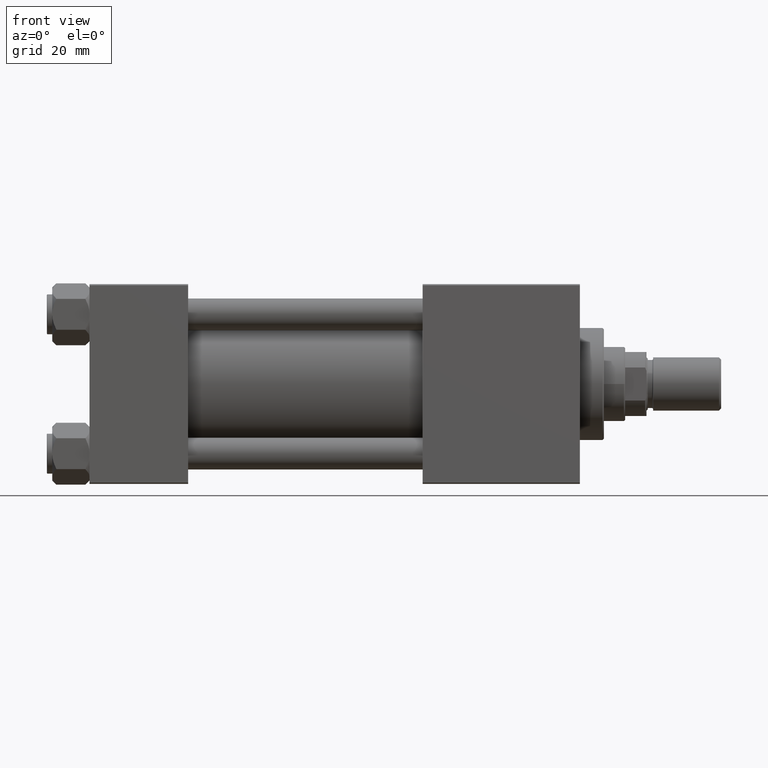
[diagram: clean part render]
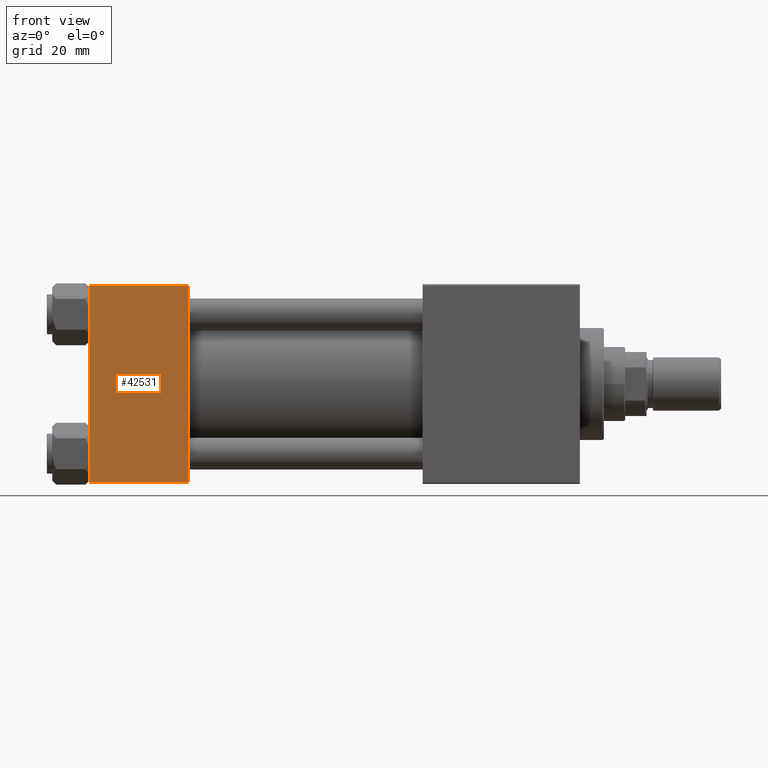
[diagram: same view with one face highlighted and labeled with its STEP entity id]
A machine part, front view. The second image highlights one B-rep face of the part: STEP entity #42531.
In plain terms, the highlighted planar face has unit normal (0, 1, 0).
Its self-contained STEP definition (entity closure, byte-faithful):
#818 = ORIENTED_EDGE ( 'NONE', *, *, #41349, .T. ) ;
#1013 = ORIENTED_EDGE ( 'NONE', *, *, #11912, .T. ) ;
#2554 = VECTOR ( 'NONE', #11000, 1000.000000000000000 ) ;
#3469 = CARTESIAN_POINT ( 'NONE',  ( 37.00000000000000000, -37.50000000000000711, 36.99999999999999289 ) ) ;
#6259 = LINE ( 'NONE', #41861, #10826 ) ;
#6762 = AXIS2_PLACEMENT_3D ( 'NONE', #44143, #12396, #28012 ) ;
#7945 = ORIENTED_EDGE ( 'NONE', *, *, #50204, .T. ) ;
#8973 = LINE ( 'NONE', #32537, #49920 ) ;
#9938 = CARTESIAN_POINT ( 'NONE',  ( 37.00000000000000000, -37.50000000000000711, 36.99999999999999289 ) ) ;
#10738 = CARTESIAN_POINT ( 'NONE',  ( 37.00000000000000000, -37.50000000000000711, 37.49999999999999289 ) ) ;
#10826 = VECTOR ( 'NONE', #17549, 1000.000000000000000 ) ;
#11000 = DIRECTION ( 'NONE',  ( 0.000000000000000000, 9.251858538542971581E-17, -1.000000000000000000 ) ) ;
#11181 = ORIENTED_EDGE ( 'NONE', *, *, #35068, .F. ) ;
#11404 = DIRECTION ( 'NONE',  ( -1.000000000000000000, 0.000000000000000000, 0.000000000000000000 ) ) ;
#11912 = EDGE_CURVE ( 'NONE', #46295, #49685, #8973, .T. ) ;
#12396 = DIRECTION ( 'NONE',  ( -0.000000000000000000, 1.000000000000000000, 9.251858538542971581E-17 ) ) ;
#17549 = DIRECTION ( 'NONE',  ( 1.000000000000000000, 0.000000000000000000, 0.000000000000000000 ) ) ;
#20844 = FACE_OUTER_BOUND ( 'NONE', #23213, .T. ) ;
#23213 = EDGE_LOOP ( 'NONE', ( #1013, #818, #11181, #7945 ) ) ;
#23697 = LINE ( 'NONE', #3469, #28315 ) ;
#28012 = DIRECTION ( 'NONE',  ( 0.000000000000000000, -9.251858538542971581E-17, 1.000000000000000000 ) ) ;
#28315 = VECTOR ( 'NONE', #11404, 1000.000000000000000 ) ;
#28780 = VERTEX_POINT ( 'NONE', #9938 ) ;
#32537 = CARTESIAN_POINT ( 'NONE',  ( 0.000000000000000000, -37.50000000000000711, 37.49999999999999289 ) ) ;
#35068 = EDGE_CURVE ( 'NONE', #28780, #39996, #46332, .T. ) ;
#37387 = CARTESIAN_POINT ( 'NONE',  ( 0.000000000000000000, -37.50000000000000711, 36.99999999999999289 ) ) ;
#39215 = DIRECTION ( 'NONE',  ( 0.000000000000000000, 9.251858538542971581E-17, -1.000000000000000000 ) ) ;
#39688 = CARTESIAN_POINT ( 'NONE',  ( 37.00000000000000000, -37.50000000000000000, -37.00000000000003553 ) ) ;
#39996 = VERTEX_POINT ( 'NONE', #39688 ) ;
#41349 = EDGE_CURVE ( 'NONE', #49685, #39996, #6259, .T. ) ;
#41760 = CARTESIAN_POINT ( 'NONE',  ( 0.000000000000000000, -37.50000000000000000, -37.00000000000003553 ) ) ;
#41861 = CARTESIAN_POINT ( 'NONE',  ( 37.00000000000000000, -37.50000000000000000, -37.00000000000003553 ) ) ;
#42531 = ADVANCED_FACE ( 'NONE', ( #20844 ), #47477, .F. ) ;
#44143 = CARTESIAN_POINT ( 'NONE',  ( 37.00000000000000000, -37.50000000000000711, 37.49999999999999289 ) ) ;
#46295 = VERTEX_POINT ( 'NONE', #37387 ) ;
#46332 = LINE ( 'NONE', #10738, #2554 ) ;
#47477 = PLANE ( 'NONE',  #6762 ) ;
#49685 = VERTEX_POINT ( 'NONE', #41760 ) ;
#49920 = VECTOR ( 'NONE', #39215, 1000.000000000000000 ) ;
#50204 = EDGE_CURVE ( 'NONE', #28780, #46295, #23697, .T. ) ;